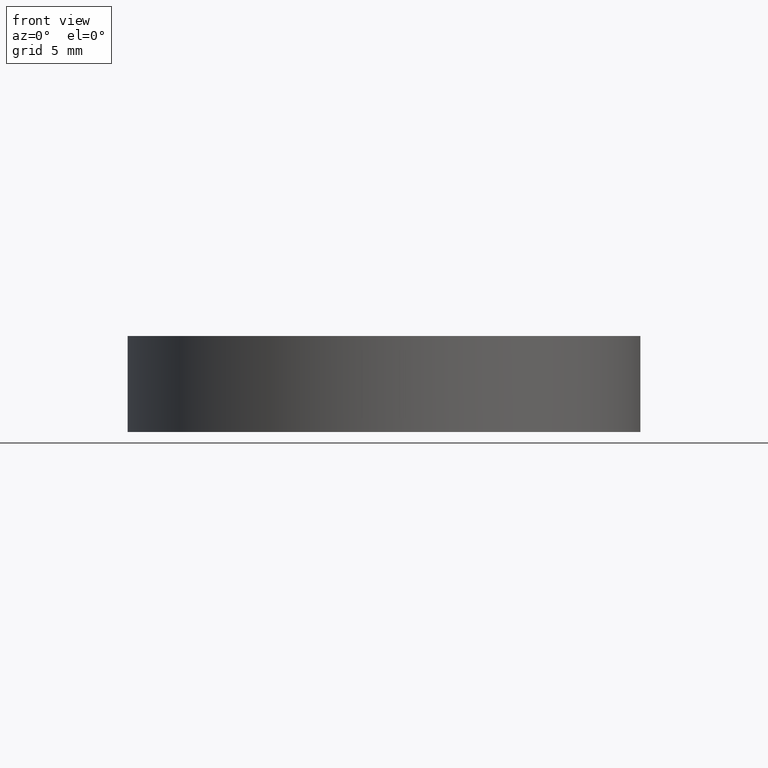
[diagram: clean part render]
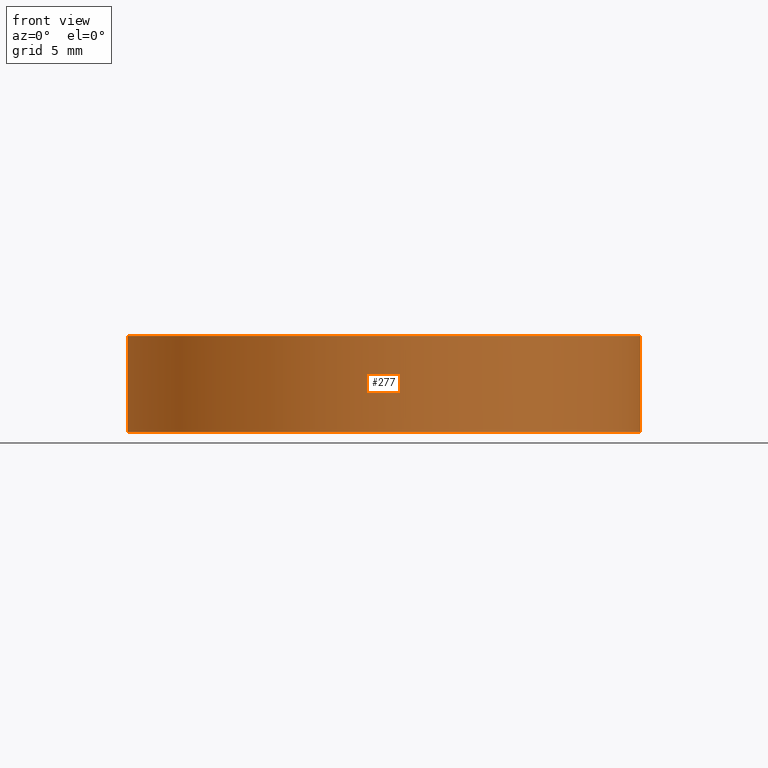
[diagram: same view with one face highlighted and labeled with its STEP entity id]
A machine part, front view. The second image highlights one B-rep face of the part: STEP entity #277.
In plain terms, the highlighted cylindrical surface (partial cylindrical patch) has radius 12.7 mm, axis along (0, 0, 1).
Its self-contained STEP definition (entity closure, byte-faithful):
#1 = LINE ( 'NONE', #70, #239 ) ;
#2 = CARTESIAN_POINT ( 'NONE',  ( 4.996003610813200500E-016, 2.442490654175340100E-015, 3.976089718365059400 ) ) ;
#18 = CARTESIAN_POINT ( 'NONE',  ( 12.69999999999999900, 2.442490654175340100E-015, 3.976089718365059400 ) ) ;
#20 = VERTEX_POINT ( 'NONE', #18 ) ;
#23 = CARTESIAN_POINT ( 'NONE',  ( -12.69999999999999900, 3.997792089092478900E-015, 3.976089718365059400 ) ) ;
#30 = AXIS2_PLACEMENT_3D ( 'NONE', #119, #90, #259 ) ;
#31 = ORIENTED_EDGE ( 'NONE', *, *, #199, .F. ) ;
#54 = ORIENTED_EDGE ( 'NONE', *, *, #240, .T. ) ;
#56 = CIRCLE ( 'NONE', #109, 12.69999999999999900 ) ;
#65 = DIRECTION ( 'NONE',  ( -0.0000000000000000000, -0.0000000000000000000, -1.000000000000000000 ) ) ;
#70 = CARTESIAN_POINT ( 'NONE',  ( -12.69999999999999900, 3.997792089092478900E-015, -0.7760897183650610200 ) ) ;
#72 = DIRECTION ( 'NONE',  ( 1.000000000000000000, 0.0000000000000000000, 0.0000000000000000000 ) ) ;
#73 = DIRECTION ( 'NONE',  ( 0.0000000000000000000, 0.0000000000000000000, 1.000000000000000000 ) ) ;
#77 = CIRCLE ( 'NONE', #30, 12.69999999999999900 ) ;
#78 = ORIENTED_EDGE ( 'NONE', *, *, #258, .T. ) ;
#79 = CYLINDRICAL_SURFACE ( 'NONE', #145, 12.69999999999999900 ) ;
#84 = CARTESIAN_POINT ( 'NONE',  ( -12.69999999999999900, 3.997792089092478900E-015, -0.7760897183650610200 ) ) ;
#85 = DIRECTION ( 'NONE',  ( 1.000000000000000000, 0.0000000000000000000, 0.0000000000000000000 ) ) ;
#87 = CARTESIAN_POINT ( 'NONE',  ( 12.69999999999999900, 2.442490654175340100E-015, -0.7760897183650610200 ) ) ;
#90 = DIRECTION ( 'NONE',  ( 0.0000000000000000000, 0.0000000000000000000, 1.000000000000000000 ) ) ;
#101 = EDGE_LOOP ( 'NONE', ( #31, #183, #54, #269, #177, #78 ) ) ;
#109 = AXIS2_PLACEMENT_3D ( 'NONE', #124, #146, #289 ) ;
#110 = FACE_OUTER_BOUND ( 'NONE', #101, .T. ) ;
#116 = EDGE_CURVE ( 'NONE', #20, #201, #151, .T. ) ;
#119 = CARTESIAN_POINT ( 'NONE',  ( 4.996003610813200500E-016, 2.442490654175340100E-015, -0.7760897183650610200 ) ) ;
#120 = CARTESIAN_POINT ( 'NONE',  ( 4.996003610813200500E-016, 2.442490654175340100E-015, -0.7760897183650610200 ) ) ;
#124 = CARTESIAN_POINT ( 'NONE',  ( 4.996003610813200500E-016, 2.442490654175340100E-015, -0.7760897183650610200 ) ) ;
#140 = VERTEX_POINT ( 'NONE', #84 ) ;
#145 = AXIS2_PLACEMENT_3D ( 'NONE', #120, #73, #163 ) ;
#146 = DIRECTION ( 'NONE',  ( 0.0000000000000000000, 0.0000000000000000000, 1.000000000000000000 ) ) ;
#151 = CIRCLE ( 'NONE', #173, 12.69999999999999900 ) ;
#154 = CIRCLE ( 'NONE', #251, 12.69999999999999900 ) ;
#163 = DIRECTION ( 'NONE',  ( 1.000000000000000000, 0.0000000000000000000, 0.0000000000000000000 ) ) ;
#173 = AXIS2_PLACEMENT_3D ( 'NONE', #2, #65, #85 ) ;
#174 = VERTEX_POINT ( 'NONE', #225 ) ;
#177 = ORIENTED_EDGE ( 'NONE', *, *, #116, .T. ) ;
#181 = EDGE_CURVE ( 'NONE', #174, #20, #235, .T. ) ;
#183 = ORIENTED_EDGE ( 'NONE', *, *, #291, .T. ) ;
#199 = EDGE_CURVE ( 'NONE', #140, #234, #1, .T. ) ;
#201 = VERTEX_POINT ( 'NONE', #295 ) ;
#202 = VECTOR ( 'NONE', #209, 1000.000000000000000 ) ;
#209 = DIRECTION ( 'NONE',  ( 0.0000000000000000000, 0.0000000000000000000, 1.000000000000000000 ) ) ;
#225 = CARTESIAN_POINT ( 'NONE',  ( 12.69999999999999900, 2.442490654175340100E-015, -0.7760897183650610200 ) ) ;
#227 = CARTESIAN_POINT ( 'NONE',  ( 4.996003610813200500E-016, 2.442490654175340100E-015, 3.976089718365059400 ) ) ;
#234 = VERTEX_POINT ( 'NONE', #23 ) ;
#235 = LINE ( 'NONE', #87, #202 ) ;
#239 = VECTOR ( 'NONE', #276, 1000.000000000000000 ) ;
#240 = EDGE_CURVE ( 'NONE', #262, #174, #77, .T. ) ;
#251 = AXIS2_PLACEMENT_3D ( 'NONE', #227, #257, #72 ) ;
#257 = DIRECTION ( 'NONE',  ( -0.0000000000000000000, -0.0000000000000000000, -1.000000000000000000 ) ) ;
#258 = EDGE_CURVE ( 'NONE', #201, #234, #154, .T. ) ;
#259 = DIRECTION ( 'NONE',  ( 1.000000000000000000, 0.0000000000000000000, 0.0000000000000000000 ) ) ;
#262 = VERTEX_POINT ( 'NONE', #281 ) ;
#269 = ORIENTED_EDGE ( 'NONE', *, *, #181, .T. ) ;
#276 = DIRECTION ( 'NONE',  ( 0.0000000000000000000, 0.0000000000000000000, 1.000000000000000000 ) ) ;
#277 = ADVANCED_FACE ( 'NONE', ( #110 ), #79, .T. ) ;
#281 = CARTESIAN_POINT ( 'NONE',  ( 2.138737032947402200E-014, -12.69999999999991900, -0.7760897183650582500 ) ) ;
#289 = DIRECTION ( 'NONE',  ( 1.000000000000000000, 0.0000000000000000000, 0.0000000000000000000 ) ) ;
#291 = EDGE_CURVE ( 'NONE', #140, #262, #56, .T. ) ;
#295 = CARTESIAN_POINT ( 'NONE',  ( -7.176515614272006900E-015, -12.69999999999995500, 3.976089718365062100 ) ) ;